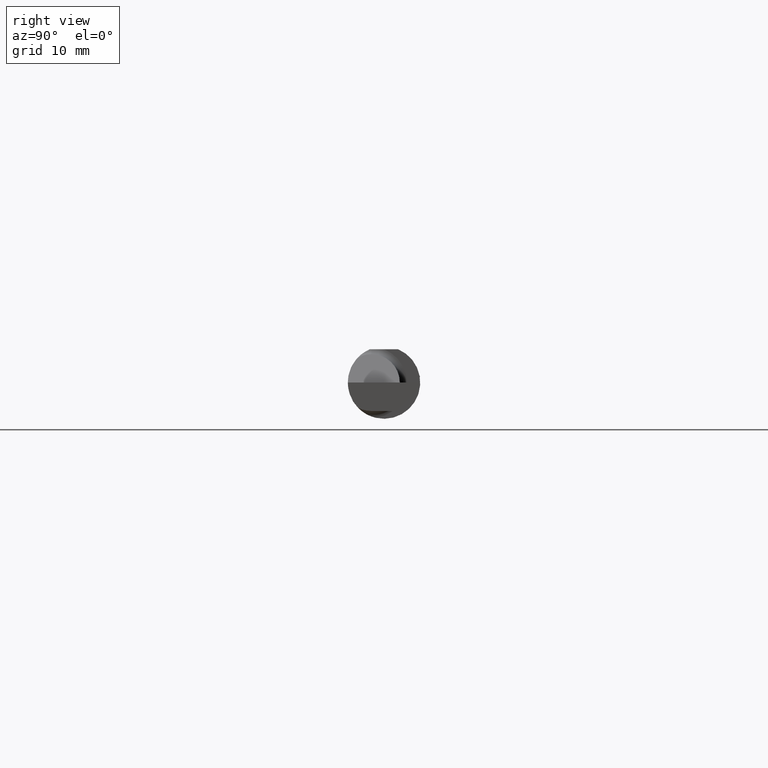
[diagram: clean part render]
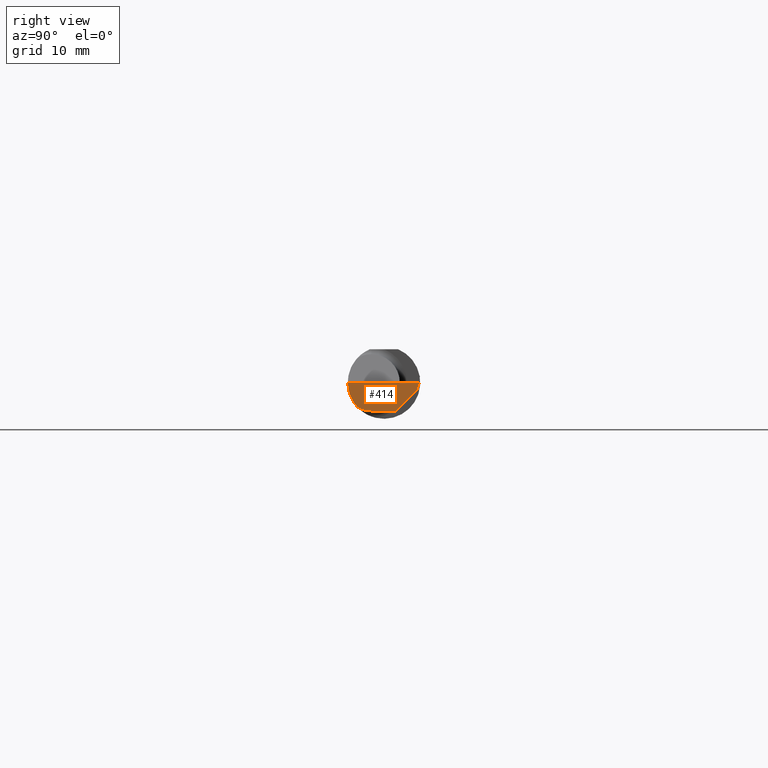
[diagram: same view with one face highlighted and labeled with its STEP entity id]
A machine part, right view. The second image highlights one B-rep face of the part: STEP entity #414.
In plain terms, the highlighted planar face has unit normal (-0.9995, 0.0174, 0.0262).
Its self-contained STEP definition (entity closure, byte-faithful):
#8 = DIRECTION ( 'NONE',  ( -0.01744642479411243410, -0.9998477995484630343, 2.816882764651548725E-16 ) ) ;
#23 = CARTESIAN_POINT ( 'NONE',  ( 2.494033449660866708, -0.09015216647662482874, -0.08637192471845768493 ) ) ;
#42 = EDGE_CURVE ( 'NONE', #288, #68, #99, .T. ) ;
#56 = ORIENTED_EDGE ( 'NONE', *, *, #601, .F. ) ;
#68 = VERTEX_POINT ( 'NONE', #578 ) ;
#84 = CARTESIAN_POINT ( 'NONE',  ( 2.494256244271086054, -0.1126860773865890342, -0.06285177167860771241 ) ) ;
#85 = VECTOR ( 'NONE', #350, 39.37007874015747433 ) ;
#88 = CARTESIAN_POINT ( 'NONE',  ( 2.494536841675280225, -0.04385000000000003478, -0.09799999999999998990 ) ) ;
#93 = CARTESIAN_POINT ( 'NONE',  ( 2.494380489674781209, -0.1999019447116721915, 6.881915332554697616E-19 ) ) ;
#99 =( BOUNDED_CURVE ( )  B_SPLINE_CURVE ( 3, ( #456, #84, #412, #766 ),
 .UNSPECIFIED., .F., .T. ) 
 B_SPLINE_CURVE_WITH_KNOTS ( ( 4, 4 ),
 ( 0.2190942387645742062, 0.9826237902197102470 ),
 .UNSPECIFIED. ) 
 CURVE ( )  GEOMETRIC_REPRESENTATION_ITEM ( )  RATIONAL_B_SPLINE_CURVE ( ( 1.000000000000000000, 0.9520057322288819623, 0.9520057322288819623, 1.000000000000000000 ) ) 
 REPRESENTATION_ITEM ( '' )  );
#117 = EDGE_CURVE ( 'NONE', #639, #211, #403, .T. ) ;
#120 =( BOUNDED_CURVE ( )  B_SPLINE_CURVE ( 3, ( #23, #712, #756, #88 ),
 .UNSPECIFIED., .F., .F. ) 
 B_SPLINE_CURVE_WITH_KNOTS ( ( 4, 4 ),
 ( 0.09562308769838283318, 0.5877155292608426951 ),
 .UNSPECIFIED. ) 
 CURVE ( )  GEOMETRIC_REPRESENTATION_ITEM ( )  RATIONAL_B_SPLINE_CURVE ( ( 1.000000000000000000, 0.9799220177372778284, 0.9799220177372778284, 1.000000000000000000 ) ) 
 REPRESENTATION_ITEM ( '' )  );
#123 = CARTESIAN_POINT ( 'NONE',  ( 2.499227245409318066, 0.1138861372810480027, -0.02399999999999999356 ) ) ;
#124 = DIRECTION ( 'NONE',  ( 0.02617296143184117893, -0.0004568507411563390110, 0.9996573249755575929 ) ) ;
#139 = VECTOR ( 'NONE', #165, 39.37007874015748143 ) ;
#165 = DIRECTION ( 'NONE',  ( -0.03042981077198511977, -0.3254173858243485373, -0.9450807116958996890 ) ) ;
#167 = DIRECTION ( 'NONE',  ( -0.03084274406794365597, -0.7067703747110382073, -0.7067703747110356538 ) ) ;
#192 = LINE ( 'NONE', #382, #494 ) ;
#205 = DIRECTION ( 'NONE',  ( 0.02618093032612054880, 0.000000000000000000, 0.9996572206948033390 ) ) ;
#211 = VERTEX_POINT ( 'NONE', #313 ) ;
#236 = CARTESIAN_POINT ( 'NONE',  ( 2.495690077103728921, -0.1248499999950964945, 8.800986592364463999E-18 ) ) ;
#237 = CARTESIAN_POINT ( 'NONE',  ( 2.495997960279815242, 0.03988613728104774270, -0.09799999999999996214 ) ) ;
#239 = EDGE_CURVE ( 'NONE', #211, #691, #362, .T. ) ;
#243 = ORIENTED_EDGE ( 'NONE', *, *, #42, .F. ) ;
#245 = CARTESIAN_POINT ( 'NONE',  ( 2.499907402661638134, 0.1211597610527450908, -0.002875862722115925512 ) ) ;
#269 = FACE_OUTER_BOUND ( 'NONE', #541, .T. ) ;
#288 = VERTEX_POINT ( 'NONE', #608 ) ;
#297 = ORIENTED_EDGE ( 'NONE', *, *, #239, .F. ) ;
#298 = CARTESIAN_POINT ( 'NONE',  ( 2.499132853025170853, 0.1117231085775383936, -0.02616302870350959223 ) ) ;
#302 = VERTEX_POINT ( 'NONE', #237 ) ;
#307 = VECTOR ( 'NONE', #124, 39.37007874015748854 ) ;
#313 = CARTESIAN_POINT ( 'NONE',  ( 2.500000000000000000, 0.1221500000000000224, 1.614031285319217924E-16 ) ) ;
#323 = EDGE_CURVE ( 'NONE', #302, #788, #192, .T. ) ;
#350 = DIRECTION ( 'NONE',  ( 0.01744642479411244104, 0.9998477995484630343, -2.135106780035405654E-18 ) ) ;
#362 = LINE ( 'NONE', #245, #139 ) ;
#382 = CARTESIAN_POINT ( 'NONE',  ( 2.496652745773395576, 0.07741163850316090667, -0.09800000000000001765 ) ) ;
#389 = EDGE_CURVE ( 'NONE', #68, #639, #446, .T. ) ;
#403 = LINE ( 'NONE', #93, #85 ) ;
#412 = CARTESIAN_POINT ( 'NONE',  ( 2.494835769263151537, -0.1248351010429638169, -0.03262966116142150541 ) ) ;
#414 = ADVANCED_FACE ( 'NONE', ( #269 ), #511, .F. ) ;
#446 = LINE ( 'NONE', #623, #307 ) ;
#456 = CARTESIAN_POINT ( 'NONE',  ( 2.494033449660866708, -0.09015216647662482874, -0.08637192471845768493 ) ) ;
#494 = VECTOR ( 'NONE', #8, 39.37007874015747433 ) ;
#507 = EDGE_CURVE ( 'NONE', #288, #788, #120, .T. ) ;
#511 = PLANE ( 'NONE',  #745 ) ;
#541 = EDGE_LOOP ( 'NONE', ( #671, #768, #56, #297, #660, #624, #243 ) ) ;
#578 = CARTESIAN_POINT ( 'NONE',  ( 2.495688583004118666, -0.1248499869621840785, -5.705736120965713455E-05 ) ) ;
#601 = EDGE_CURVE ( 'NONE', #691, #302, #781, .T. ) ;
#608 = CARTESIAN_POINT ( 'NONE',  ( 2.494033449660866708, -0.09015216647662482874, -0.08637192471845768493 ) ) ;
#623 = CARTESIAN_POINT ( 'NONE',  ( 2.493072779947982820, -0.1248043149033065263, -0.09996577117162364079 ) ) ;
#624 = ORIENTED_EDGE ( 'NONE', *, *, #389, .F. ) ;
#639 = VERTEX_POINT ( 'NONE', #236 ) ;
#660 = ORIENTED_EDGE ( 'NONE', *, *, #117, .F. ) ;
#671 = ORIENTED_EDGE ( 'NONE', *, *, #507, .T. ) ;
#688 = DIRECTION ( 'NONE',  ( -0.9995051766793263681, 0.01744044634006990460, 0.02617694830739123249 ) ) ;
#691 = VERTEX_POINT ( 'NONE', #123 ) ;
#709 = VECTOR ( 'NONE', #167, 39.37007874015748854 ) ;
#712 = CARTESIAN_POINT ( 'NONE',  ( 2.494082244196983211, -0.07583965973232817404, -0.09404455760388209795 ) ) ;
#738 = CARTESIAN_POINT ( 'NONE',  ( 2.494536841675280225, -0.04385000000000003478, -0.09799999999999998990 ) ) ;
#745 = AXIS2_PLACEMENT_3D ( 'NONE', #748, #688, #205 ) ;
#748 = CARTESIAN_POINT ( 'NONE',  ( 2.497382703856815933, 0.1221956850741156148, -0.09996573249755576207 ) ) ;
#756 = CARTESIAN_POINT ( 'NONE',  ( 2.494253479596433731, -0.06008937020638527304, -0.09800000000000000377 ) ) ;
#766 = CARTESIAN_POINT ( 'NONE',  ( 2.495688583004118666, -0.1248499869621840785, -5.705736120965713455E-05 ) ) ;
#768 = ORIENTED_EDGE ( 'NONE', *, *, #323, .F. ) ;
#781 = LINE ( 'NONE', #298, #709 ) ;
#788 = VERTEX_POINT ( 'NONE', #738 ) ;